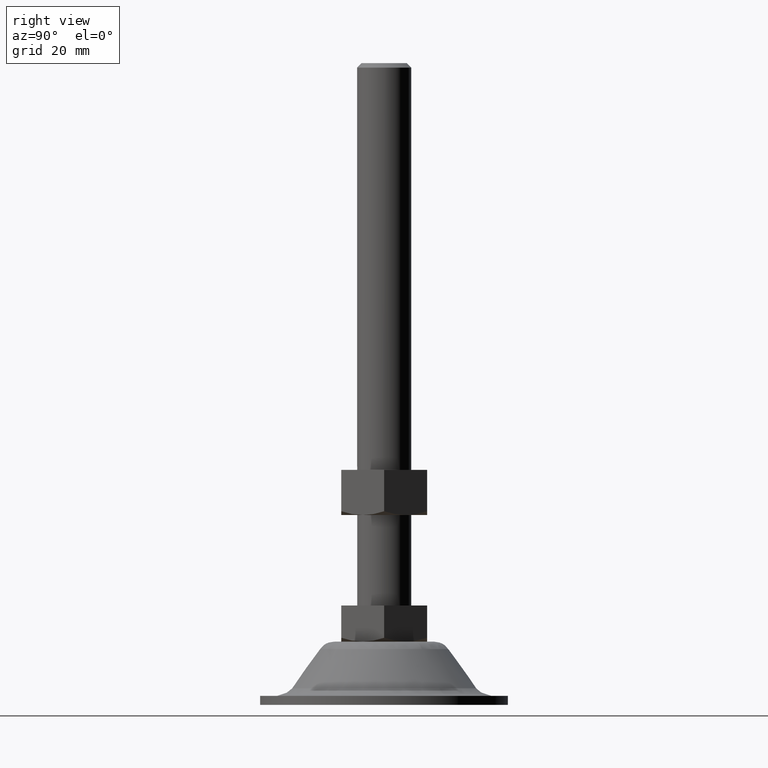
[diagram: clean part render]
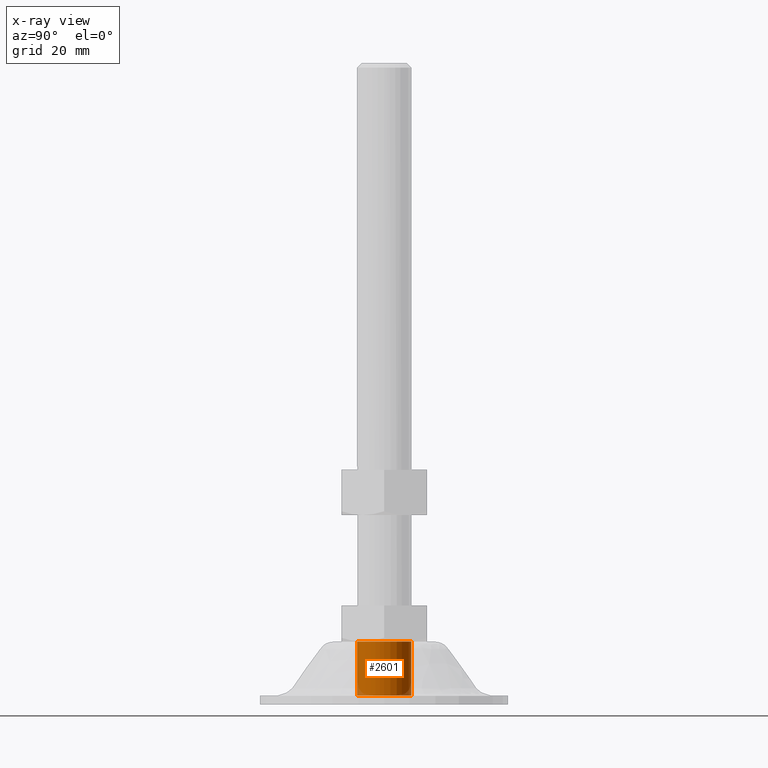
[diagram: x-ray — body ghosted, one internal face saturated and labeled with its STEP entity id]
A machine part, right view, then the same camera in x-ray: the body is ghosted and one INTERNAL B-rep face — a face not visible from any outside direction — is saturated and labeled: STEP entity #2601.
In plain terms, the highlighted face is a freeform B-spline surface patch.
Its self-contained STEP definition (entity closure, byte-faithful):
#2440=CARTESIAN_POINT('',(-0.470754574655435,-5.981504002376072,14.0));
#2441=VERTEX_POINT('',#2440);
#2455=CARTESIAN_POINT('',(0.470754574655436,5.981504002376072,14.0));
#2456=VERTEX_POINT('',#2455);
#2472=CARTESIAN_POINT('',(0.470754574655435,5.981504002376072,2.0));
#2473=VERTEX_POINT('',#2472);
#2474=CARTESIAN_POINT('',(0.470754574655436,5.981504002376072,14.0));
#2475=CARTESIAN_POINT('',(0.470754574655435,5.981504002376072,2.0));
#2476=QUASI_UNIFORM_CURVE('',1,(#2474,#2475),.UNSPECIFIED.,.F.,.U.);
#2477=EDGE_CURVE('',#2456,#2473,#2476,.T.);
#2496=CARTESIAN_POINT('',(-0.470754574655436,-5.981504002376072,2.0));
#2497=VERTEX_POINT('',#2496);
#2511=CARTESIAN_POINT('',(-0.470754574655435,-5.981504002376072,14.0));
#2512=CARTESIAN_POINT('',(-0.470754574655436,-5.981504002376072,2.0));
#2513=QUASI_UNIFORM_CURVE('',1,(#2511,#2512),.UNSPECIFIED.,.F.,.U.);
#2514=EDGE_CURVE('',#2441,#2497,#2513,.T.);
#2519=CARTESIAN_POINT('',(0.470754574367073,5.981504002398766,14.300000000000001));
#2520=CARTESIAN_POINT('',(6.452258576765839,5.510749428031692,14.299999999999999));
#2521=CARTESIAN_POINT('',(5.981504002398766,-0.470754574367073,14.300000000000001));
#2522=CARTESIAN_POINT('',(5.510749428031692,-6.452258576765839,14.299999999999999));
#2523=CARTESIAN_POINT('',(-0.470754574367073,-5.981504002398766,14.300000000000001));
#2524=CARTESIAN_POINT('',(0.470754574367073,5.981504002398766,1.692499999999999));
#2525=CARTESIAN_POINT('',(6.452258576765839,5.510749428031692,1.692499999999999));
#2526=CARTESIAN_POINT('',(5.981504002398766,-0.470754574367073,1.692499999999999));
#2527=CARTESIAN_POINT('',(5.510749428031692,-6.452258576765839,1.692499999999999));
#2528=CARTESIAN_POINT('',(-0.470754574367073,-5.981504002398766,1.692499999999999));
#2536=(BOUNDED_SURFACE()B_SPLINE_SURFACE(2,1,((#2519,#2524),(#2520,#2525),(#2521,#2526),(#2522,#2527),(#2523,#2528)),.UNSPECIFIED.,.F.,.F.,.U.)B_SPLINE_SURFACE_WITH_KNOTS((3,2,3),(2,2),(0.0,9.941125496954280,19.882250993908560),(0.0,12.607500000000011),.UNSPECIFIED.)GEOMETRIC_REPRESENTATION_ITEM()RATIONAL_B_SPLINE_SURFACE(((1.0,1.0),(0.707106781186548,0.707106781186548),(1.0,1.0),(0.707106781186548,0.707106781186548),(1.0,1.0)))REPRESENTATION_ITEM('')SURFACE());
#2537=CARTESIAN_POINT('',(6.0,0.0,14.0));
#2538=VERTEX_POINT('',#2537);
#2539=CARTESIAN_POINT('',(-0.470754574655435,-5.981504002376072,14.000000000000005));
#2540=CARTESIAN_POINT('',(-0.235740642335720,-6.0,13.999999999999998));
#2541=CARTESIAN_POINT('',(0.0,-6.0,14.0));
#2542=CARTESIAN_POINT('',(6.0,-6.0,13.999999999999998));
#2543=CARTESIAN_POINT('',(6.0,0.0,14.0));
#2551=(BOUNDED_CURVE()B_SPLINE_CURVE(2,(#2539,#2540,#2541,#2542,#2543),.UNSPECIFIED.,.F.,.U.)B_SPLINE_CURVE_WITH_KNOTS((3,2,3),(0.736331300616238,0.750000000000000,1.0),.UNSPECIFIED.)CURVE()GEOMETRIC_REPRESENTATION_ITEM()RATIONAL_B_SPLINE_CURVE((0.969723356137322,0.983986122561986,1.0,0.707106781186548,1.0))REPRESENTATION_ITEM(''));
#2552=EDGE_CURVE('',#2441,#2538,#2551,.T.);
#2553=ORIENTED_EDGE('',*,*,#2552,.F.);
#2554=ORIENTED_EDGE('',*,*,#2514,.T.);
#2555=CARTESIAN_POINT('',(6.0,0.0,2.0));
#2556=VERTEX_POINT('',#2555);
#2557=CARTESIAN_POINT('',(-0.470754574655436,-5.981504002376072,2.000000000000000));
#2558=CARTESIAN_POINT('',(-0.235740642335721,-5.999999999999999,2.000000000000000));
#2559=CARTESIAN_POINT('',(0.0,-6.0,2.0));
#2560=CARTESIAN_POINT('',(6.0,-6.0,2.000000000000000));
#2561=CARTESIAN_POINT('',(6.0,0.0,2.0));
#2569=(BOUNDED_CURVE()B_SPLINE_CURVE(2,(#2557,#2558,#2559,#2560,#2561),.UNSPECIFIED.,.F.,.U.)B_SPLINE_CURVE_WITH_KNOTS((3,2,3),(0.236331300616238,0.250000000000000,0.500000000000000),.UNSPECIFIED.)CURVE()GEOMETRIC_REPRESENTATION_ITEM()RATIONAL_B_SPLINE_CURVE((0.969723356137322,0.983986122561986,1.0,0.707106781186548,1.0))REPRESENTATION_ITEM(''));
#2570=EDGE_CURVE('',#2497,#2556,#2569,.T.);
#2571=ORIENTED_EDGE('',*,*,#2570,.T.);
#2572=CARTESIAN_POINT('',(6.0,0.0,2.0));
#2573=CARTESIAN_POINT('',(6.0,5.546342949412848,2.000000000000000));
#2574=CARTESIAN_POINT('',(0.470754574655435,5.981504002376072,2.000000000000000));
#2582=(BOUNDED_CURVE()B_SPLINE_CURVE(2,(#2572,#2573,#2574),.UNSPECIFIED.,.F.,.U.)B_SPLINE_CURVE_WITH_KNOTS((3,3),(0.500000000000000,0.736331300616239),.UNSPECIFIED.)CURVE()GEOMETRIC_REPRESENTATION_ITEM()RATIONAL_B_SPLINE_CURVE((1.0,0.723120658624560,0.969723356137324))REPRESENTATION_ITEM(''));
#2583=EDGE_CURVE('',#2556,#2473,#2582,.T.);
#2584=ORIENTED_EDGE('',*,*,#2583,.T.);
#2585=ORIENTED_EDGE('',*,*,#2477,.F.);
#2586=CARTESIAN_POINT('',(6.0,0.0,14.0));
#2587=CARTESIAN_POINT('',(6.000000000000001,5.546342949412817,14.000000000000004));
#2588=CARTESIAN_POINT('',(0.470754574655436,5.981504002376072,13.999999999999998));
#2596=(BOUNDED_CURVE()B_SPLINE_CURVE(2,(#2586,#2587,#2588),.UNSPECIFIED.,.F.,.U.)B_SPLINE_CURVE_WITH_KNOTS((3,3),(0.0,0.236331300616238),.UNSPECIFIED.)CURVE()GEOMETRIC_REPRESENTATION_ITEM()RATIONAL_B_SPLINE_CURVE((1.0,0.723120658624561,0.969723356137322))REPRESENTATION_ITEM(''));
#2597=EDGE_CURVE('',#2538,#2456,#2596,.T.);
#2598=ORIENTED_EDGE('',*,*,#2597,.F.);
#2599=EDGE_LOOP('',(#2553,#2554,#2571,#2584,#2585,#2598));
#2600=FACE_OUTER_BOUND('',#2599,.T.);
#2601=ADVANCED_FACE('',(#2600),#2536,.T.);